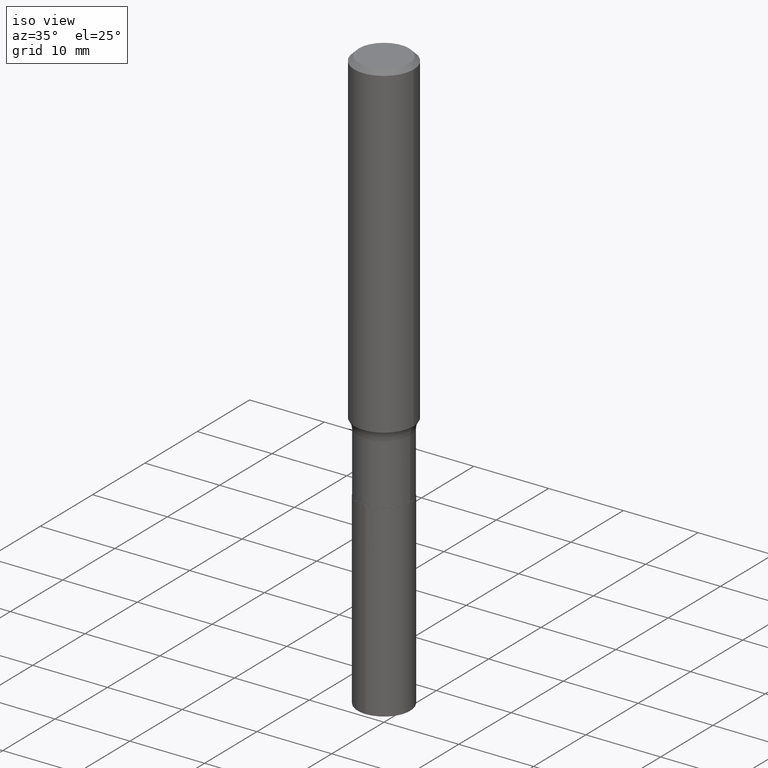
[diagram: clean part render]
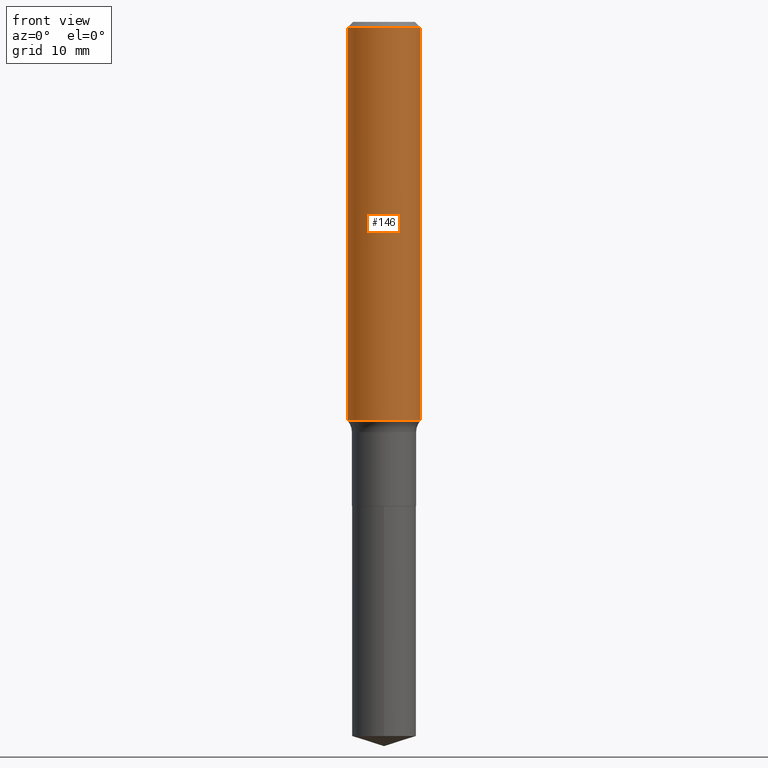
[diagram: tour spotlight — one face highlighted and labeled with its STEP entity id]
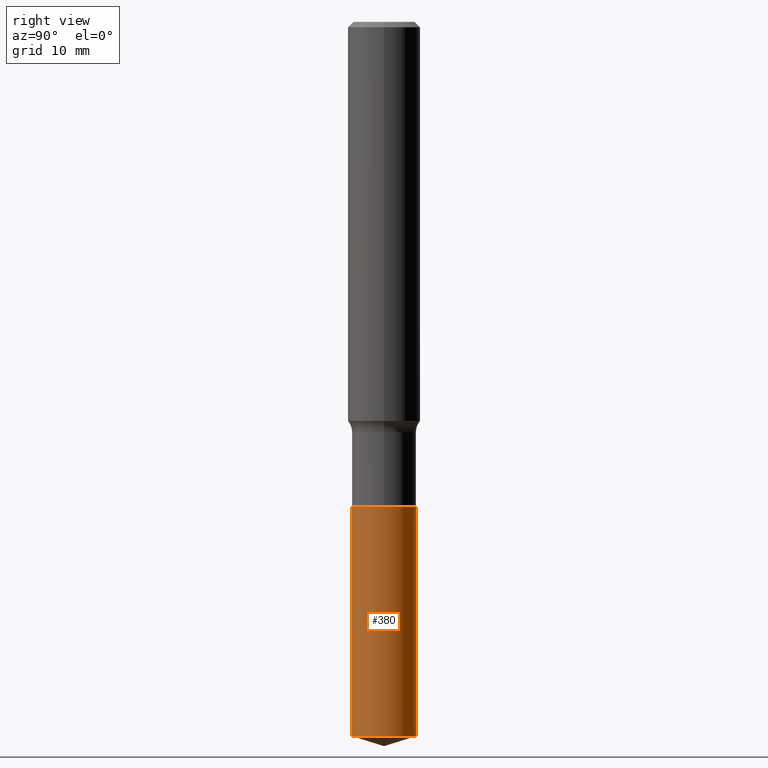
[diagram: tour spotlight — one face highlighted and labeled with its STEP entity id]
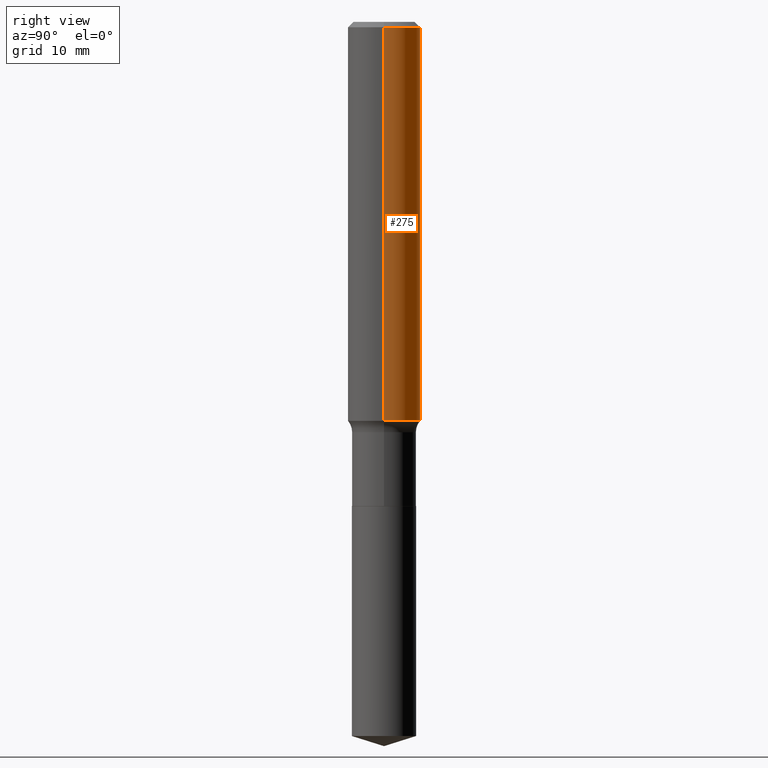
[diagram: tour spotlight — one face highlighted and labeled with its STEP entity id]
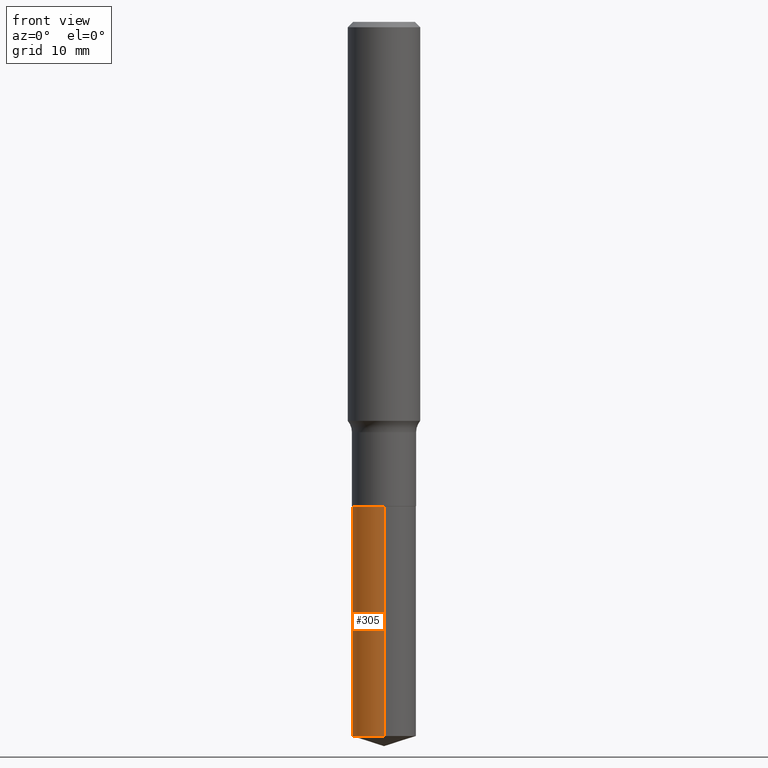
[diagram: tour spotlight — one face highlighted and labeled with its STEP entity id]
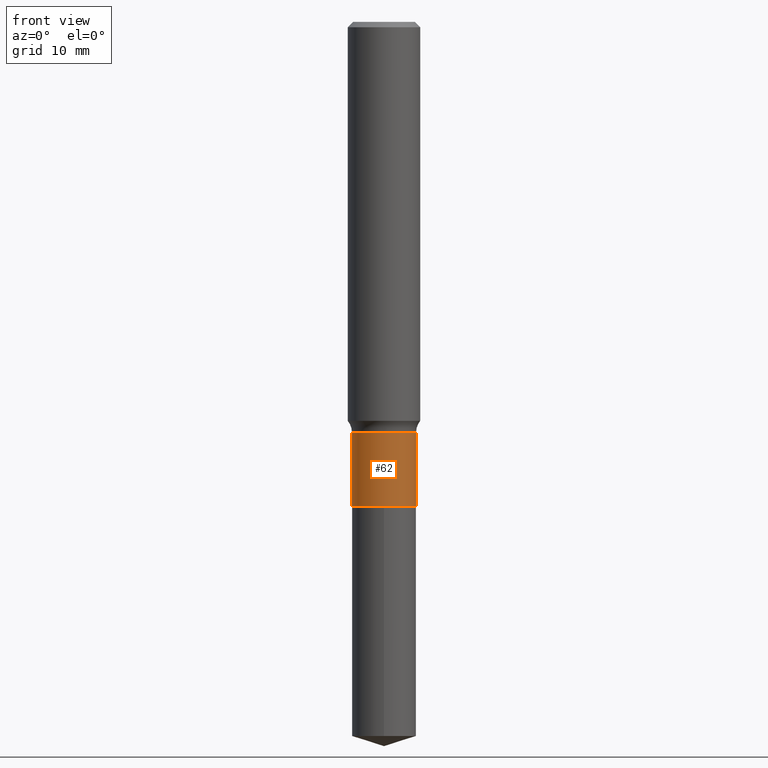
[diagram: tour spotlight — one face highlighted and labeled with its STEP entity id]
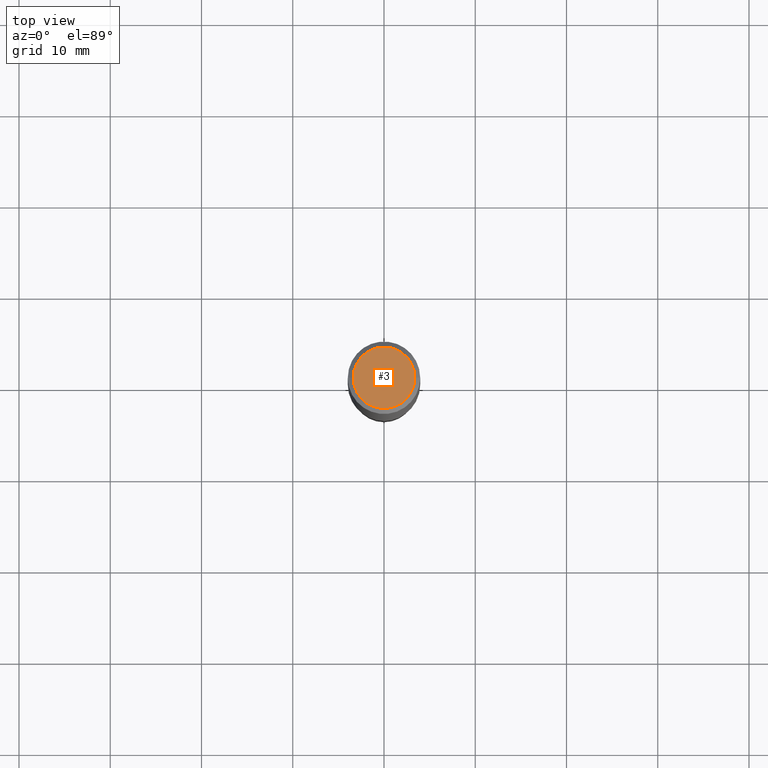
[diagram: tour spotlight — one face highlighted and labeled with its STEP entity id]
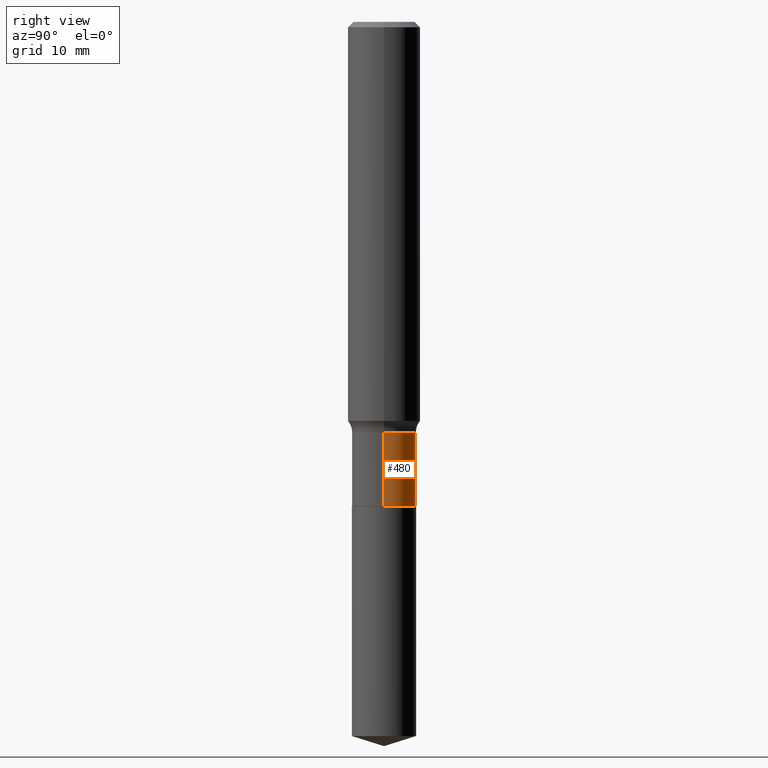
[diagram: tour spotlight — one face highlighted and labeled with its STEP entity id]
A machine part: a face-by-face anatomy tour. The part has 17 B-rep faces; the first image is the clean iso view, then the 7 largest visible faces are spotlighted one at a time (largest first), each with its STEP entity span.

Face 1 — front view, entity #146. In plain terms, the highlighted cylindrical surface (edge-blend (fillet) strip) has radius 3.9688 mm, axis along (-0, 0, 1).
Definition (entity closure, byte-faithful):
#5 = ORIENTED_EDGE ( 'NONE', *, *, #362, .T. ) ;
#8 = AXIS2_PLACEMENT_3D ( 'NONE', #411, #66, #371 ) ;
#20 = DIRECTION ( 'NONE',  ( -2.445468806185136877E-29, 3.491481338843145188E-15, 1.000000000000000000 ) ) ;
#66 = DIRECTION ( 'NONE',  ( -2.445468806185136597E-29, 3.491481338843145583E-15, 1.000000000000000000 ) ) ;
#88 = CIRCLE ( 'NONE', #215, 0.1562500000000002220 ) ;
#91 = LINE ( 'NONE', #434, #405 ) ;
#105 = CARTESIAN_POINT ( 'NONE',  ( 4.209538949674238313E-29, -6.010105976714014974E-15, -1.721362766528599542 ) ) ;
#124 = EDGE_CURVE ( 'NONE', #417, #382, #91, .T. ) ;
#143 = AXIS2_PLACEMENT_3D ( 'NONE', #333, #479, #343 ) ;
#144 = LINE ( 'NONE', #173, #171 ) ;
#146 = ADVANCED_FACE ( 'NONE', ( #252 ), #217, .T. ) ;
#149 = ORIENTED_EDGE ( 'NONE', *, *, #445, .T. ) ;
#171 = VECTOR ( 'NONE', #219, 39.37007874015748143 ) ;
#173 = CARTESIAN_POINT ( 'NONE',  ( 0.1562500000000001110, -1.091087918388479962E-15, 7.619026212181155982E-30 ) ) ;
#215 = AXIS2_PLACEMENT_3D ( 'NONE', #105, #484, #259 ) ;
#217 = CYLINDRICAL_SURFACE ( 'NONE', #8, 0.1562500000000001110 ) ;
#219 = DIRECTION ( 'NONE',  ( -2.445468806185136877E-29, 3.491481338843145188E-15, 1.000000000000000000 ) ) ;
#222 = CARTESIAN_POINT ( 'NONE',  ( -0.1562500000000000000, -1.935745760671417584E-15, -0.02343750000000014225 ) ) ;
#226 = VERTEX_POINT ( 'NONE', #242 ) ;
#234 = CIRCLE ( 'NONE', #143, 0.1562500000000000000 ) ;
#242 = CARTESIAN_POINT ( 'NONE',  ( 0.1562500000000002498, -7.101193895102496514E-15, -1.721362766528599542 ) ) ;
#252 = FACE_OUTER_BOUND ( 'NONE', #340, .T. ) ;
#259 = DIRECTION ( 'NONE',  ( 1.000000000000000000, -6.982962677686265922E-15, 0.000000000000000000 ) ) ;
#333 = CARTESIAN_POINT ( 'NONE',  ( 5.731567514496448931E-31, -8.183159387913672688E-17, -0.02343750000000014225 ) ) ;
#340 = EDGE_LOOP ( 'NONE', ( #450, #5, #149, #454 ) ) ;
#343 = DIRECTION ( 'NONE',  ( 1.000000000000000000, -6.982962677686266711E-15, 0.000000000000000000 ) ) ;
#348 = VERTEX_POINT ( 'NONE', #432 ) ;
#362 = EDGE_CURVE ( 'NONE', #417, #226, #88, .T. ) ;
#371 = DIRECTION ( 'NONE',  ( 1.000000000000000000, -6.982962677686266711E-15, 4.876176775795936353E-29 ) ) ;
#382 = VERTEX_POINT ( 'NONE', #222 ) ;
#405 = VECTOR ( 'NONE', #20, 39.37007874015748143 ) ;
#407 = EDGE_CURVE ( 'NONE', #382, #348, #234, .T. ) ;
#411 = CARTESIAN_POINT ( 'NONE',  ( 0.000000000000000000, 0.000000000000000000, 0.000000000000000000 ) ) ;
#417 = VERTEX_POINT ( 'NONE', #418 ) ;
#418 = CARTESIAN_POINT ( 'NONE',  ( -0.1562500000000002498, -4.899882952088857645E-15, -1.721362766528599542 ) ) ;
#432 = CARTESIAN_POINT ( 'NONE',  ( 0.1562500000000000000, -1.172919512267615999E-15, -0.02343750000000014225 ) ) ;
#434 = CARTESIAN_POINT ( 'NONE',  ( -0.1562500000000001110, 1.110223024625157329E-15, -7.685836078523295364E-30 ) ) ;
#445 = EDGE_CURVE ( 'NONE', #226, #348, #144, .T. ) ;
#450 = ORIENTED_EDGE ( 'NONE', *, *, #124, .F. ) ;
#454 = ORIENTED_EDGE ( 'NONE', *, *, #407, .F. ) ;
#479 = DIRECTION ( 'NONE',  ( -2.445468806185136597E-29, 3.491481338843145583E-15, 1.000000000000000000 ) ) ;
#484 = DIRECTION ( 'NONE',  ( -2.445468806185136597E-29, 3.491481338843145583E-15, 1.000000000000000000 ) ) ;

Face 2 — right view, entity #380. In plain terms, the highlighted cylindrical surface (edge-blend (fillet) strip) has radius 3.5179 mm, axis along (-0, 0, 1).
Definition (entity closure, byte-faithful):
#22 = CARTESIAN_POINT ( 'NONE',  ( 9.841016890277897242E-16, 0.1384999999999927123, -2.089500000000000579 ) ) ;
#28 = LINE ( 'NONE', #22, #386 ) ;
#37 = CYLINDRICAL_SURFACE ( 'NONE', #284, 0.1385000000000000120 ) ;
#72 = CARTESIAN_POINT ( 'NONE',  ( 9.841016890278141788E-16, 0.1384999999999927123, -2.089500000000000579 ) ) ;
#104 = VECTOR ( 'NONE', #339, 39.37007874015748143 ) ;
#113 = CIRCLE ( 'NONE', #446, 0.1385000000000000120 ) ;
#135 = CARTESIAN_POINT ( 'NONE',  ( -9.671403308594968054E-16, -0.1385000000000072840, -2.089499999999999691 ) ) ;
#151 = ORIENTED_EDGE ( 'NONE', *, *, #491, .T. ) ;
#204 = CARTESIAN_POINT ( 'NONE',  ( 5.109807070523843179E-29, -7.295450257512754504E-15, -2.089500000000000135 ) ) ;
#207 = DIRECTION ( 'NONE',  ( -6.982962677686265922E-15, -1.000000000000000000, 3.944906850056697224E-15 ) ) ;
#224 = CARTESIAN_POINT ( 'NONE',  ( 7.535227932487693934E-29, -1.075851205522145711E-14, -3.081331117740261583 ) ) ;
#232 = EDGE_CURVE ( 'NONE', #257, #388, #113, .T. ) ;
#239 = EDGE_LOOP ( 'NONE', ( #151, #428, #482, #374 ) ) ;
#257 = VERTEX_POINT ( 'NONE', #474 ) ;
#270 = DIRECTION ( 'NONE',  ( -6.982962677686265922E-15, -1.000000000000000000, 3.944906850056697224E-15 ) ) ;
#278 = VERTEX_POINT ( 'NONE', #402 ) ;
#284 = AXIS2_PLACEMENT_3D ( 'NONE', #408, #364, #367 ) ;
#297 = CARTESIAN_POINT ( 'NONE',  ( 9.841016890278143761E-16, 0.1384999999999892706, -3.081331117740262027 ) ) ;
#299 = LINE ( 'NONE', #135, #104 ) ;
#339 = DIRECTION ( 'NONE',  ( -2.445397022317477189E-29, 3.491584137427317387E-15, 1.000000000000000000 ) ) ;
#364 = DIRECTION ( 'NONE',  ( -2.445397022317477189E-29, 3.491584137427317781E-15, 1.000000000000000000 ) ) ;
#367 = DIRECTION ( 'NONE',  ( -6.982962677686265922E-15, -1.000000000000000000, 3.944906850056697224E-15 ) ) ;
#369 = CIRCLE ( 'NONE', #460, 0.1385000000000000120 ) ;
#373 = DIRECTION ( 'NONE',  ( -2.445397022317477189E-29, 3.491584137427317387E-15, 1.000000000000000000 ) ) ;
#374 = ORIENTED_EDGE ( 'NONE', *, *, #426, .F. ) ;
#380 = ADVANCED_FACE ( 'NONE', ( #448 ), #37, .T. ) ;
#386 = VECTOR ( 'NONE', #373, 39.37007874015748143 ) ;
#388 = VERTEX_POINT ( 'NONE', #72 ) ;
#392 = VERTEX_POINT ( 'NONE', #297 ) ;
#394 = EDGE_CURVE ( 'NONE', #392, #388, #28, .T. ) ;
#402 = CARTESIAN_POINT ( 'NONE',  ( -9.671403308594727452E-16, -0.1385000000000108089, -3.081331117740260694 ) ) ;
#406 = DIRECTION ( 'NONE',  ( -2.445397022317477189E-29, 3.491584137427317781E-15, 1.000000000000000000 ) ) ;
#408 = CARTESIAN_POINT ( 'NONE',  ( 5.109807070523843179E-29, -7.295450257512754504E-15, -2.089500000000000135 ) ) ;
#426 = EDGE_CURVE ( 'NONE', #278, #257, #299, .T. ) ;
#428 = ORIENTED_EDGE ( 'NONE', *, *, #394, .T. ) ;
#446 = AXIS2_PLACEMENT_3D ( 'NONE', #204, #406, #207 ) ;
#448 = FACE_OUTER_BOUND ( 'NONE', #239, .T. ) ;
#460 = AXIS2_PLACEMENT_3D ( 'NONE', #224, #492, #270 ) ;
#474 = CARTESIAN_POINT ( 'NONE',  ( -9.671403308594968054E-16, -0.1385000000000072840, -2.089499999999999691 ) ) ;
#482 = ORIENTED_EDGE ( 'NONE', *, *, #232, .F. ) ;
#491 = EDGE_CURVE ( 'NONE', #278, #392, #369, .T. ) ;
#492 = DIRECTION ( 'NONE',  ( -2.445397022317477189E-29, 3.491584137427317781E-15, 1.000000000000000000 ) ) ;

Face 3 — right view, entity #275. In plain terms, the highlighted cylindrical surface (edge-blend (fillet) strip) has radius 3.9688 mm, axis along (-0, 0, 1).
Definition (entity closure, byte-faithful):
#7 = ORIENTED_EDGE ( 'NONE', *, *, #124, .T. ) ;
#20 = DIRECTION ( 'NONE',  ( -2.445468806185136877E-29, 3.491481338843145188E-15, 1.000000000000000000 ) ) ;
#56 = EDGE_CURVE ( 'NONE', #226, #417, #103, .T. ) ;
#59 = DIRECTION ( 'NONE',  ( 1.000000000000000000, -6.982962677686266711E-15, 4.876176775795936353E-29 ) ) ;
#77 = ORIENTED_EDGE ( 'NONE', *, *, #456, .F. ) ;
#91 = LINE ( 'NONE', #434, #405 ) ;
#103 = CIRCLE ( 'NONE', #346, 0.1562500000000002220 ) ;
#117 = DIRECTION ( 'NONE',  ( 1.000000000000000000, -6.982962677686265922E-15, 0.000000000000000000 ) ) ;
#124 = EDGE_CURVE ( 'NONE', #417, #382, #91, .T. ) ;
#144 = LINE ( 'NONE', #173, #171 ) ;
#150 = CARTESIAN_POINT ( 'NONE',  ( 4.209538949674238313E-29, -6.010105976714014974E-15, -1.721362766528599542 ) ) ;
#171 = VECTOR ( 'NONE', #219, 39.37007874015748143 ) ;
#173 = CARTESIAN_POINT ( 'NONE',  ( 0.1562500000000001110, -1.091087918388479962E-15, 7.619026212181155982E-30 ) ) ;
#219 = DIRECTION ( 'NONE',  ( -2.445468806185136877E-29, 3.491481338843145188E-15, 1.000000000000000000 ) ) ;
#222 = CARTESIAN_POINT ( 'NONE',  ( -0.1562500000000000000, -1.935745760671417584E-15, -0.02343750000000014225 ) ) ;
#225 = DIRECTION ( 'NONE',  ( 1.000000000000000000, -6.982962677686266711E-15, 0.000000000000000000 ) ) ;
#226 = VERTEX_POINT ( 'NONE', #242 ) ;
#228 = AXIS2_PLACEMENT_3D ( 'NONE', #303, #265, #225 ) ;
#229 = EDGE_LOOP ( 'NONE', ( #235, #7, #77, #281 ) ) ;
#235 = ORIENTED_EDGE ( 'NONE', *, *, #56, .T. ) ;
#242 = CARTESIAN_POINT ( 'NONE',  ( 0.1562500000000002498, -7.101193895102496514E-15, -1.721362766528599542 ) ) ;
#247 = FACE_OUTER_BOUND ( 'NONE', #229, .T. ) ;
#265 = DIRECTION ( 'NONE',  ( -2.445468806185136597E-29, 3.491481338843145583E-15, 1.000000000000000000 ) ) ;
#275 = ADVANCED_FACE ( 'NONE', ( #247 ), #356, .T. ) ;
#281 = ORIENTED_EDGE ( 'NONE', *, *, #445, .F. ) ;
#303 = CARTESIAN_POINT ( 'NONE',  ( 5.731567514496448931E-31, -8.183159387913672688E-17, -0.02343750000000014225 ) ) ;
#308 = DIRECTION ( 'NONE',  ( -2.445468806185136597E-29, 3.491481338843145583E-15, 1.000000000000000000 ) ) ;
#313 = AXIS2_PLACEMENT_3D ( 'NONE', #399, #469, #59 ) ;
#346 = AXIS2_PLACEMENT_3D ( 'NONE', #150, #308, #117 ) ;
#348 = VERTEX_POINT ( 'NONE', #432 ) ;
#356 = CYLINDRICAL_SURFACE ( 'NONE', #313, 0.1562500000000001110 ) ;
#382 = VERTEX_POINT ( 'NONE', #222 ) ;
#399 = CARTESIAN_POINT ( 'NONE',  ( 0.000000000000000000, 0.000000000000000000, 0.000000000000000000 ) ) ;
#405 = VECTOR ( 'NONE', #20, 39.37007874015748143 ) ;
#417 = VERTEX_POINT ( 'NONE', #418 ) ;
#418 = CARTESIAN_POINT ( 'NONE',  ( -0.1562500000000002498, -4.899882952088857645E-15, -1.721362766528599542 ) ) ;
#432 = CARTESIAN_POINT ( 'NONE',  ( 0.1562500000000000000, -1.172919512267615999E-15, -0.02343750000000014225 ) ) ;
#434 = CARTESIAN_POINT ( 'NONE',  ( -0.1562500000000001110, 1.110223024625157329E-15, -7.685836078523295364E-30 ) ) ;
#438 = CIRCLE ( 'NONE', #228, 0.1562500000000000000 ) ;
#445 = EDGE_CURVE ( 'NONE', #226, #348, #144, .T. ) ;
#456 = EDGE_CURVE ( 'NONE', #348, #382, #438, .T. ) ;
#469 = DIRECTION ( 'NONE',  ( -2.445468806185136597E-29, 3.491481338843145583E-15, 1.000000000000000000 ) ) ;

Face 4 — front view, entity #305. In plain terms, the highlighted cylindrical surface (edge-blend (fillet) strip) has radius 3.5179 mm, axis along (-0, 0, 1).
Definition (entity closure, byte-faithful):
#22 = CARTESIAN_POINT ( 'NONE',  ( 9.841016890277897242E-16, 0.1384999999999927123, -2.089500000000000579 ) ) ;
#28 = LINE ( 'NONE', #22, #386 ) ;
#52 = CYLINDRICAL_SURFACE ( 'NONE', #467, 0.1385000000000000120 ) ;
#72 = CARTESIAN_POINT ( 'NONE',  ( 9.841016890278141788E-16, 0.1384999999999927123, -2.089500000000000579 ) ) ;
#104 = VECTOR ( 'NONE', #339, 39.37007874015748143 ) ;
#125 = CARTESIAN_POINT ( 'NONE',  ( 5.109807070523843179E-29, -7.295450257512754504E-15, -2.089500000000000135 ) ) ;
#135 = CARTESIAN_POINT ( 'NONE',  ( -9.671403308594968054E-16, -0.1385000000000072840, -2.089499999999999691 ) ) ;
#152 = ORIENTED_EDGE ( 'NONE', *, *, #195, .T. ) ;
#158 = DIRECTION ( 'NONE',  ( -6.982962677686265922E-15, -1.000000000000000000, 3.944906850056697224E-15 ) ) ;
#164 = FACE_OUTER_BOUND ( 'NONE', #461, .T. ) ;
#181 = ORIENTED_EDGE ( 'NONE', *, *, #426, .T. ) ;
#195 = EDGE_CURVE ( 'NONE', #392, #278, #290, .T. ) ;
#209 = DIRECTION ( 'NONE',  ( -2.445397022317477189E-29, 3.491584137427317781E-15, 1.000000000000000000 ) ) ;
#227 = CIRCLE ( 'NONE', #458, 0.1385000000000000120 ) ;
#238 = DIRECTION ( 'NONE',  ( -6.982962677686265922E-15, -1.000000000000000000, 3.944906850056697224E-15 ) ) ;
#249 = CARTESIAN_POINT ( 'NONE',  ( 5.109807070523843179E-29, -7.295450257512754504E-15, -2.089500000000000135 ) ) ;
#257 = VERTEX_POINT ( 'NONE', #474 ) ;
#278 = VERTEX_POINT ( 'NONE', #402 ) ;
#286 = DIRECTION ( 'NONE',  ( -6.982962677686265922E-15, -1.000000000000000000, 3.944906850056697224E-15 ) ) ;
#287 = CARTESIAN_POINT ( 'NONE',  ( 7.535227932487693934E-29, -1.075851205522145711E-14, -3.081331117740261583 ) ) ;
#290 = CIRCLE ( 'NONE', #412, 0.1385000000000000120 ) ;
#297 = CARTESIAN_POINT ( 'NONE',  ( 9.841016890278143761E-16, 0.1384999999999892706, -3.081331117740262027 ) ) ;
#299 = LINE ( 'NONE', #135, #104 ) ;
#305 = ADVANCED_FACE ( 'NONE', ( #164 ), #52, .T. ) ;
#339 = DIRECTION ( 'NONE',  ( -2.445397022317477189E-29, 3.491584137427317387E-15, 1.000000000000000000 ) ) ;
#341 = EDGE_CURVE ( 'NONE', #388, #257, #227, .T. ) ;
#351 = ORIENTED_EDGE ( 'NONE', *, *, #394, .F. ) ;
#358 = DIRECTION ( 'NONE',  ( -2.445397022317477189E-29, 3.491584137427317781E-15, 1.000000000000000000 ) ) ;
#370 = DIRECTION ( 'NONE',  ( -2.445397022317477189E-29, 3.491584137427317781E-15, 1.000000000000000000 ) ) ;
#373 = DIRECTION ( 'NONE',  ( -2.445397022317477189E-29, 3.491584137427317387E-15, 1.000000000000000000 ) ) ;
#386 = VECTOR ( 'NONE', #373, 39.37007874015748143 ) ;
#388 = VERTEX_POINT ( 'NONE', #72 ) ;
#392 = VERTEX_POINT ( 'NONE', #297 ) ;
#394 = EDGE_CURVE ( 'NONE', #392, #388, #28, .T. ) ;
#402 = CARTESIAN_POINT ( 'NONE',  ( -9.671403308594727452E-16, -0.1385000000000108089, -3.081331117740260694 ) ) ;
#412 = AXIS2_PLACEMENT_3D ( 'NONE', #287, #370, #238 ) ;
#424 = ORIENTED_EDGE ( 'NONE', *, *, #341, .F. ) ;
#426 = EDGE_CURVE ( 'NONE', #278, #257, #299, .T. ) ;
#458 = AXIS2_PLACEMENT_3D ( 'NONE', #125, #358, #286 ) ;
#461 = EDGE_LOOP ( 'NONE', ( #351, #152, #181, #424 ) ) ;
#467 = AXIS2_PLACEMENT_3D ( 'NONE', #249, #209, #158 ) ;
#474 = CARTESIAN_POINT ( 'NONE',  ( -9.671403308594968054E-16, -0.1385000000000072840, -2.089499999999999691 ) ) ;

Face 5 — front view, entity #62. In plain terms, the highlighted cylindrical surface (edge-blend (fillet) strip) has radius 3.5179 mm, axis along (-0, 0, 1).
Definition (entity closure, byte-faithful):
#2 = CARTESIAN_POINT ( 'NONE',  ( 0.1385000000000000120, -8.260844847702879898E-15, -2.089000000000000412 ) ) ;
#10 = EDGE_CURVE ( 'NONE', #304, #38, #50, .T. ) ;
#36 = AXIS2_PLACEMENT_3D ( 'NONE', #423, #42, #189 ) ;
#38 = VERTEX_POINT ( 'NONE', #2 ) ;
#41 = ORIENTED_EDGE ( 'NONE', *, *, #449, .F. ) ;
#42 = DIRECTION ( 'NONE',  ( -2.445468806185136597E-29, 3.491481338843145583E-15, 1.000000000000000000 ) ) ;
#45 = AXIS2_PLACEMENT_3D ( 'NONE', #256, #61, #376 ) ;
#50 = CIRCLE ( 'NONE', #36, 0.1385000000000000120 ) ;
#61 = DIRECTION ( 'NONE',  ( -2.445468806185136597E-29, 3.491481338843145583E-15, 1.000000000000000000 ) ) ;
#62 = ADVANCED_FACE ( 'NONE', ( #273 ), #231, .T. ) ;
#64 = CARTESIAN_POINT ( 'NONE',  ( -0.1384999999999999842, 9.841016890277386454E-16, -6.812725100003043759E-30 ) ) ;
#67 = CIRCLE ( 'NONE', #45, 0.1384999999999999842 ) ;
#70 = LINE ( 'NONE', #129, #126 ) ;
#71 = VERTEX_POINT ( 'NONE', #165 ) ;
#97 = ORIENTED_EDGE ( 'NONE', *, *, #391, .T. ) ;
#126 = VECTOR ( 'NONE', #184, 39.37007874015748143 ) ;
#129 = CARTESIAN_POINT ( 'NONE',  ( 0.1384999999999999842, -9.671403308595478842E-16, 6.753504834477370120E-30 ) ) ;
#165 = CARTESIAN_POINT ( 'NONE',  ( 0.1384999999999999842, -7.150204633816874363E-15, -1.770899999999999919 ) ) ;
#175 = DIRECTION ( 'NONE',  ( -2.445468806185136597E-29, 3.491481338843145583E-15, 1.000000000000000000 ) ) ;
#184 = DIRECTION ( 'NONE',  ( -2.445468806185136877E-29, 3.491481338843145188E-15, 1.000000000000000000 ) ) ;
#187 = VERTEX_POINT ( 'NONE', #338 ) ;
#189 = DIRECTION ( 'NONE',  ( 1.000000000000000000, -6.982962677686265922E-15, 0.000000000000000000 ) ) ;
#201 = VECTOR ( 'NONE', #372, 39.37007874015748143 ) ;
#206 = CARTESIAN_POINT ( 'NONE',  ( -0.1385000000000000120, -5.754282720872590206E-15, -2.089000000000000412 ) ) ;
#214 = ORIENTED_EDGE ( 'NONE', *, *, #381, .F. ) ;
#231 = CYLINDRICAL_SURFACE ( 'NONE', #251, 0.1384999999999999842 ) ;
#251 = AXIS2_PLACEMENT_3D ( 'NONE', #384, #175, #355 ) ;
#253 = LINE ( 'NONE', #64, #201 ) ;
#256 = CARTESIAN_POINT ( 'NONE',  ( 4.330680708873258393E-29, -6.183064302957326676E-15, -1.770899999999999919 ) ) ;
#260 = ORIENTED_EDGE ( 'NONE', *, *, #10, .T. ) ;
#273 = FACE_OUTER_BOUND ( 'NONE', #300, .T. ) ;
#300 = EDGE_LOOP ( 'NONE', ( #41, #260, #97, #214 ) ) ;
#304 = VERTEX_POINT ( 'NONE', #206 ) ;
#338 = CARTESIAN_POINT ( 'NONE',  ( -0.1384999999999999842, -5.754282720872590206E-15, -1.770899999999999919 ) ) ;
#355 = DIRECTION ( 'NONE',  ( 1.000000000000000000, -6.982962677686267499E-15, 4.876176775795935793E-29 ) ) ;
#372 = DIRECTION ( 'NONE',  ( -2.445468806185136877E-29, 3.491481338843145188E-15, 1.000000000000000000 ) ) ;
#376 = DIRECTION ( 'NONE',  ( 1.000000000000000000, -6.982962677686267499E-15, 0.000000000000000000 ) ) ;
#381 = EDGE_CURVE ( 'NONE', #187, #71, #67, .T. ) ;
#384 = CARTESIAN_POINT ( 'NONE',  ( 0.000000000000000000, 0.000000000000000000, 0.000000000000000000 ) ) ;
#391 = EDGE_CURVE ( 'NONE', #38, #71, #70, .T. ) ;
#423 = CARTESIAN_POINT ( 'NONE',  ( 5.108584336120751499E-29, -7.293704516843332211E-15, -2.089000000000000412 ) ) ;
#449 = EDGE_CURVE ( 'NONE', #304, #187, #253, .T. ) ;

Face 6 — top view, entity #3. In plain terms, the highlighted planar face has unit normal (0, -0, -1).
Definition (entity closure, byte-faithful):
#3 = ADVANCED_FACE ( 'NONE', ( #116 ), #122, .F. ) ;
#26 = CIRCLE ( 'NONE', #163, 0.1328125000000000000 ) ;
#32 = VERTEX_POINT ( 'NONE', #345 ) ;
#47 = ORIENTED_EDGE ( 'NONE', *, *, #140, .T. ) ;
#79 = EDGE_LOOP ( 'NONE', ( #47, #120 ) ) ;
#96 = DIRECTION ( 'NONE',  ( -2.445468806185136597E-29, 3.491481338843145583E-15, 1.000000000000000000 ) ) ;
#116 = FACE_OUTER_BOUND ( 'NONE', #79, .T. ) ;
#120 = ORIENTED_EDGE ( 'NONE', *, *, #352, .T. ) ;
#122 = PLANE ( 'NONE',  #353 ) ;
#140 = EDGE_CURVE ( 'NONE', #379, #32, #26, .T. ) ;
#163 = AXIS2_PLACEMENT_3D ( 'NONE', #172, #476, #258 ) ;
#172 = CARTESIAN_POINT ( 'NONE',  ( -7.955031918821654702E-47, 1.135767727816384474E-32, 3.252968060235159383E-18 ) ) ;
#212 = CARTESIAN_POINT ( 'NONE',  ( -7.955031918821654702E-47, 1.135767727816384474E-32, 3.252968060235159383E-18 ) ) ;
#230 = DIRECTION ( 'NONE',  ( -1.000000000000000000, 6.982962677686265922E-15, -4.876176775795935793E-29 ) ) ;
#244 = CIRCLE ( 'NONE', #261, 0.1328125000000000000 ) ;
#258 = DIRECTION ( 'NONE',  ( 1.000000000000000000, -6.982962677686268288E-15, 4.876286914311434227E-29 ) ) ;
#261 = AXIS2_PLACEMENT_3D ( 'NONE', #212, #96, #336 ) ;
#271 = CARTESIAN_POINT ( 'NONE',  ( -3.977515959410827351E-47, 5.678838639081922371E-33, 1.626484030117579692E-18 ) ) ;
#336 = DIRECTION ( 'NONE',  ( 1.000000000000000000, -6.982962677686268288E-15, 4.876286914311434227E-29 ) ) ;
#345 = CARTESIAN_POINT ( 'NONE',  ( 0.1328125000000000000, -1.032472148179985084E-15, 3.252968060242011842E-18 ) ) ;
#352 = EDGE_CURVE ( 'NONE', #32, #379, #244, .T. ) ;
#353 = AXIS2_PLACEMENT_3D ( 'NONE', #271, #422, #230 ) ;
#379 = VERTEX_POINT ( 'NONE', #447 ) ;
#422 = DIRECTION ( 'NONE',  ( 2.438088387897960049E-29, -3.491481338843145188E-15, -1.000000000000000000 ) ) ;
#447 = CARTESIAN_POINT ( 'NONE',  ( -0.1328125000000000000, 9.683405275697749214E-16, 3.252968060228530332E-18 ) ) ;
#476 = DIRECTION ( 'NONE',  ( -2.445468806185136597E-29, 3.491481338843145583E-15, 1.000000000000000000 ) ) ;

Face 7 — right view, entity #480. In plain terms, the highlighted cylindrical surface (edge-blend (fillet) strip) has radius 3.5179 mm, axis along (-0, 0, 1).
Definition (entity closure, byte-faithful):
#2 = CARTESIAN_POINT ( 'NONE',  ( 0.1385000000000000120, -8.260844847702879898E-15, -2.089000000000000412 ) ) ;
#19 = CARTESIAN_POINT ( 'NONE',  ( 5.108584336120751499E-29, -7.293704516843332211E-15, -2.089000000000000412 ) ) ;
#30 = CARTESIAN_POINT ( 'NONE',  ( 4.330680708873258393E-29, -6.183064302957326676E-15, -1.770899999999999919 ) ) ;
#38 = VERTEX_POINT ( 'NONE', #2 ) ;
#44 = ORIENTED_EDGE ( 'NONE', *, *, #391, .F. ) ;
#64 = CARTESIAN_POINT ( 'NONE',  ( -0.1384999999999999842, 9.841016890277386454E-16, -6.812725100003043759E-30 ) ) ;
#65 = ORIENTED_EDGE ( 'NONE', *, *, #176, .F. ) ;
#70 = LINE ( 'NONE', #129, #126 ) ;
#71 = VERTEX_POINT ( 'NONE', #165 ) ;
#101 = EDGE_LOOP ( 'NONE', ( #111, #296, #65, #44 ) ) ;
#109 = CARTESIAN_POINT ( 'NONE',  ( 0.000000000000000000, 0.000000000000000000, 0.000000000000000000 ) ) ;
#111 = ORIENTED_EDGE ( 'NONE', *, *, #294, .T. ) ;
#112 = CYLINDRICAL_SURFACE ( 'NONE', #478, 0.1384999999999999842 ) ;
#126 = VECTOR ( 'NONE', #184, 39.37007874015748143 ) ;
#129 = CARTESIAN_POINT ( 'NONE',  ( 0.1384999999999999842, -9.671403308595478842E-16, 6.753504834477370120E-30 ) ) ;
#145 = DIRECTION ( 'NONE',  ( -2.445468806185136597E-29, 3.491481338843145583E-15, 1.000000000000000000 ) ) ;
#162 = DIRECTION ( 'NONE',  ( 1.000000000000000000, -6.982962677686265922E-15, 0.000000000000000000 ) ) ;
#165 = CARTESIAN_POINT ( 'NONE',  ( 0.1384999999999999842, -7.150204633816874363E-15, -1.770899999999999919 ) ) ;
#176 = EDGE_CURVE ( 'NONE', #71, #187, #208, .T. ) ;
#184 = DIRECTION ( 'NONE',  ( -2.445468806185136877E-29, 3.491481338843145188E-15, 1.000000000000000000 ) ) ;
#187 = VERTEX_POINT ( 'NONE', #338 ) ;
#201 = VECTOR ( 'NONE', #372, 39.37007874015748143 ) ;
#205 = DIRECTION ( 'NONE',  ( 1.000000000000000000, -6.982962677686267499E-15, 0.000000000000000000 ) ) ;
#206 = CARTESIAN_POINT ( 'NONE',  ( -0.1385000000000000120, -5.754282720872590206E-15, -2.089000000000000412 ) ) ;
#208 = CIRCLE ( 'NONE', #385, 0.1384999999999999842 ) ;
#233 = AXIS2_PLACEMENT_3D ( 'NONE', #19, #396, #162 ) ;
#246 = DIRECTION ( 'NONE',  ( -2.445468806185136597E-29, 3.491481338843145583E-15, 1.000000000000000000 ) ) ;
#253 = LINE ( 'NONE', #64, #201 ) ;
#294 = EDGE_CURVE ( 'NONE', #38, #304, #397, .T. ) ;
#296 = ORIENTED_EDGE ( 'NONE', *, *, #449, .T. ) ;
#304 = VERTEX_POINT ( 'NONE', #206 ) ;
#338 = CARTESIAN_POINT ( 'NONE',  ( -0.1384999999999999842, -5.754282720872590206E-15, -1.770899999999999919 ) ) ;
#372 = DIRECTION ( 'NONE',  ( -2.445468806185136877E-29, 3.491481338843145188E-15, 1.000000000000000000 ) ) ;
#383 = DIRECTION ( 'NONE',  ( 1.000000000000000000, -6.982962677686267499E-15, 4.876176775795935793E-29 ) ) ;
#385 = AXIS2_PLACEMENT_3D ( 'NONE', #30, #246, #205 ) ;
#391 = EDGE_CURVE ( 'NONE', #38, #71, #70, .T. ) ;
#396 = DIRECTION ( 'NONE',  ( -2.445468806185136597E-29, 3.491481338843145583E-15, 1.000000000000000000 ) ) ;
#397 = CIRCLE ( 'NONE', #233, 0.1385000000000000120 ) ;
#449 = EDGE_CURVE ( 'NONE', #304, #187, #253, .T. ) ;
#478 = AXIS2_PLACEMENT_3D ( 'NONE', #109, #145, #383 ) ;
#480 = ADVANCED_FACE ( 'NONE', ( #490 ), #112, .T. ) ;
#490 = FACE_OUTER_BOUND ( 'NONE', #101, .T. ) ;